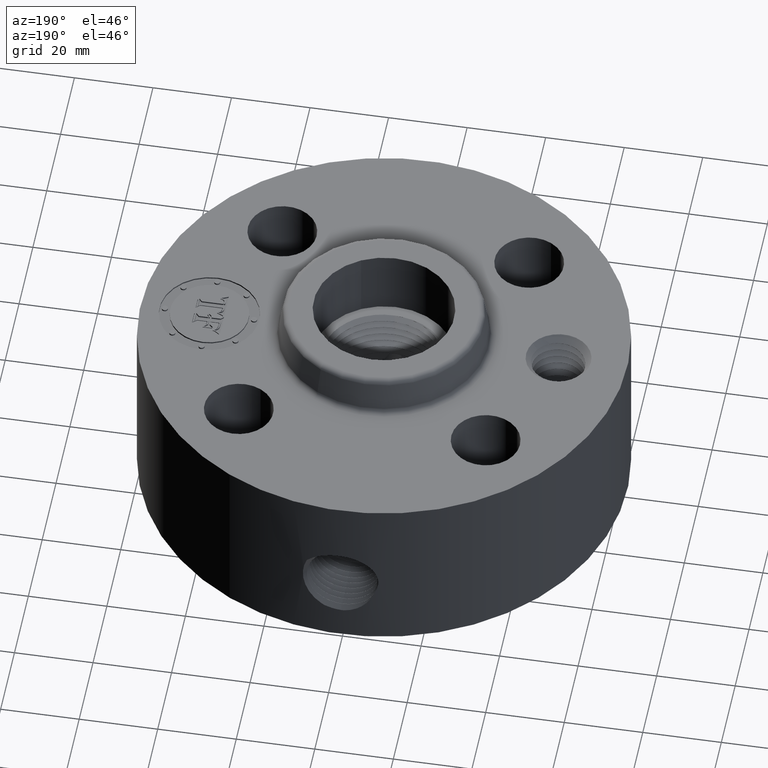
[diagram: clean part render]
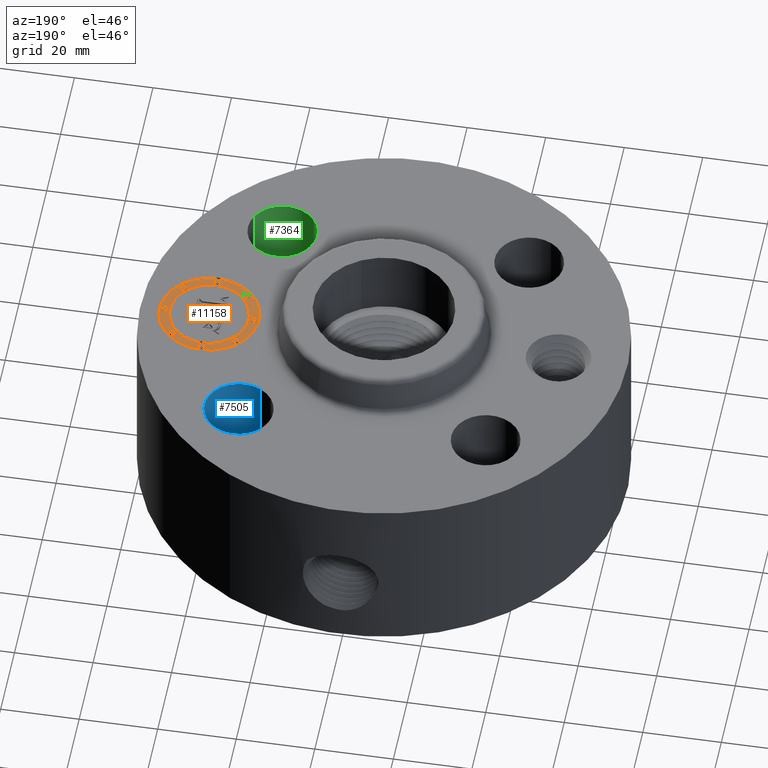
[diagram: same view with three faces highlighted in distinct colors, each labeled with its STEP entity id]
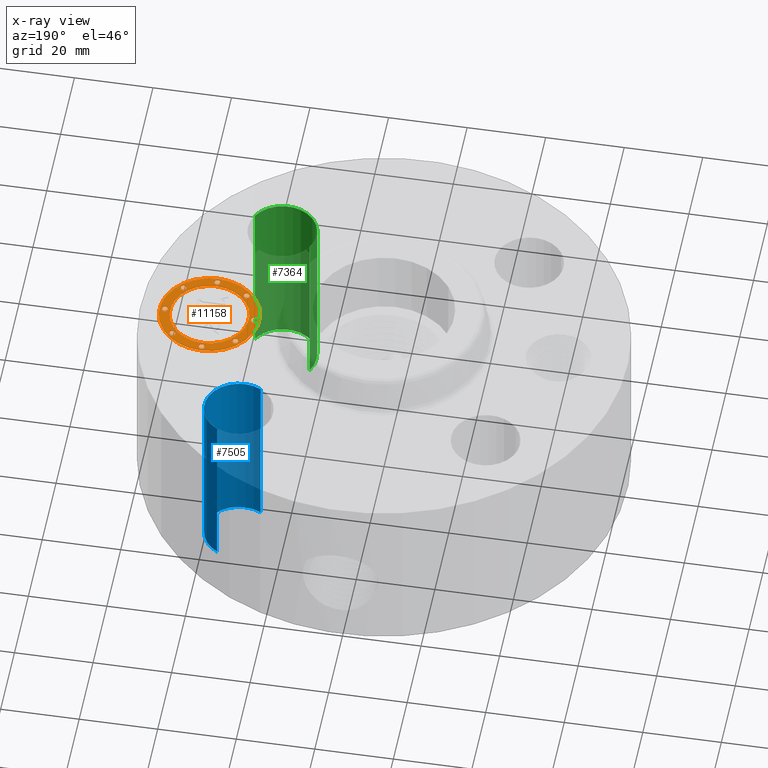
[diagram: x-ray of the same camera — body ghosted, the three highlighted faces saturated]
A machine part, auxiliary view with three faces highlighted in distinct colors.
The next image is the same camera in x-ray (body ghosted, the three faces saturated) — at least one of them is partly hidden behind the body in this view.
Their STEP definitions:

[orange] entity #11158 — the highlighted planar face has unit normal (0, 0, 1).
#9767=AXIS2_PLACEMENT_3D('Circle Axis2P3D',#9765,#9766,$) ;
#9794=AXIS2_PLACEMENT_3D('Circle Axis2P3D',#9792,#9793,$) ;
#10990=AXIS2_PLACEMENT_3D('Plane Axis2P3D',#10987,#10988,#10989) ;
#10998=AXIS2_PLACEMENT_3D('Circle Axis2P3D',#10996,#10997,$) ;
#11007=AXIS2_PLACEMENT_3D('Circle Axis2P3D',#11005,#11006,$) ;
#11016=AXIS2_PLACEMENT_3D('Circle Axis2P3D',#11014,#11015,$) ;
#11025=AXIS2_PLACEMENT_3D('Circle Axis2P3D',#11023,#11024,$) ;
#11034=AXIS2_PLACEMENT_3D('Circle Axis2P3D',#11032,#11033,$) ;
#11043=AXIS2_PLACEMENT_3D('Circle Axis2P3D',#11041,#11042,$) ;
#11052=AXIS2_PLACEMENT_3D('Circle Axis2P3D',#11050,#11051,$) ;
#11061=AXIS2_PLACEMENT_3D('Circle Axis2P3D',#11059,#11060,$) ;
#11070=AXIS2_PLACEMENT_3D('Circle Axis2P3D',#11068,#11069,$) ;
#11079=AXIS2_PLACEMENT_3D('Circle Axis2P3D',#11077,#11078,$) ;
#11088=AXIS2_PLACEMENT_3D('Circle Axis2P3D',#11086,#11087,$) ;
#11097=AXIS2_PLACEMENT_3D('Circle Axis2P3D',#11095,#11096,$) ;
#11106=AXIS2_PLACEMENT_3D('Circle Axis2P3D',#11104,#11105,$) ;
#11115=AXIS2_PLACEMENT_3D('Circle Axis2P3D',#11113,#11114,$) ;
#11124=AXIS2_PLACEMENT_3D('Circle Axis2P3D',#11122,#11123,$) ;
#11133=AXIS2_PLACEMENT_3D('Circle Axis2P3D',#11131,#11132,$) ;
#11142=AXIS2_PLACEMENT_3D('Circle Axis2P3D',#11140,#11141,$) ;
#11151=AXIS2_PLACEMENT_3D('Circle Axis2P3D',#11149,#11150,$) ;
#9762=CARTESIAN_POINT('Vertex',(1.75000000001,-0.499999995002,1.73500000001)) ;
#9765=CARTESIAN_POINT('Axis2P3D Location',(1.75000000001,-4.38103225949E-015,1.73500000001)) ;
#9769=CARTESIAN_POINT('Vertex',(1.75000000001,0.499999995002,1.73500000001)) ;
#9792=CARTESIAN_POINT('Axis2P3D Location',(1.75000000001,-4.38103225949E-015,1.73500000001)) ;
#10987=CARTESIAN_POINT('Axis2P3D Location',(0.,0.,1.73500000001)) ;
#10996=CARTESIAN_POINT('Axis2P3D Location',(1.75000000001,-4.38103225949E-015,1.73500000001)) ;
#11000=CARTESIAN_POINT('Vertex',(1.75000000001,-0.393939390002,1.73500000001)) ;
#11002=CARTESIAN_POINT('Vertex',(1.75000000001,0.393939390002,1.73500000001)) ;
#11005=CARTESIAN_POINT('Axis2P3D Location',(1.75000000001,-4.38103225949E-015,1.73500000001)) ;
#11014=CARTESIAN_POINT('Axis2P3D Location',(1.30303030751,-5.65258331292E-015,1.73500000001)) ;
#11018=CARTESIAN_POINT('Vertex',(1.30303030751,-0.0303030300001,1.73500000001)) ;
#11020=CARTESIAN_POINT('Vertex',(1.30303030751,0.0303030300001,1.73500000001)) ;
#11023=CARTESIAN_POINT('Axis2P3D Location',(1.30303030751,-5.65258331292E-015,1.73500000001)) ;
#11032=CARTESIAN_POINT('Axis2P3D Location',(1.75000000001,0.446969692502,1.73500000001)) ;
#11036=CARTESIAN_POINT('Vertex',(1.75000000001,0.416666662502,1.73500000001)) ;
#11038=CARTESIAN_POINT('Vertex',(1.75000000001,0.477272722502,1.73500000001)) ;
#11041=CARTESIAN_POINT('Axis2P3D Location',(1.75000000001,0.446969692502,1.73500000001)) ;
#11050=CARTESIAN_POINT('Axis2P3D Location',(1.43394469945,0.316055300553,1.73500000001)) ;
#11054=CARTESIAN_POINT('Vertex',(1.43394469945,0.285752270553,1.73500000001)) ;
#11056=CARTESIAN_POINT('Vertex',(1.43394469945,0.346358330553,1.73500000001)) ;
#11059=CARTESIAN_POINT('Axis2P3D Location',(1.43394469945,0.316055300553,1.73500000001)) ;
#11068=CARTESIAN_POINT('Axis2P3D Location',(2.19696969251,7.34549412211E-015,1.73500000001)) ;
#11072=CARTESIAN_POINT('Vertex',(2.19696969251,-0.0303030300001,1.73500000001)) ;
#11074=CARTESIAN_POINT('Vertex',(2.19696969251,0.0303030300001,1.73500000001)) ;
#11077=CARTESIAN_POINT('Axis2P3D Location',(2.19696969251,7.34549412211E-015,1.73500000001)) ;
#11086=CARTESIAN_POINT('Axis2P3D Location',(2.06605530056,0.316055300553,1.73500000001)) ;
#11090=CARTESIAN_POINT('Vertex',(2.06605530056,0.285752270553,1.73500000001)) ;
#11092=CARTESIAN_POINT('Vertex',(2.06605530056,0.346358330553,1.73500000001)) ;
#11095=CARTESIAN_POINT('Axis2P3D Location',(2.06605530056,0.316055300553,1.73500000001)) ;
#11104=CARTESIAN_POINT('Axis2P3D Location',(1.75000000001,-0.446969692502,1.73500000001)) ;
#11108=CARTESIAN_POINT('Vertex',(1.75000000001,-0.416666662502,1.73500000001)) ;
#11110=CARTESIAN_POINT('Vertex',(1.75000000001,-0.477272722502,1.73500000001)) ;
#11113=CARTESIAN_POINT('Axis2P3D Location',(1.75000000001,-0.446969692502,1.73500000001)) ;
#11122=CARTESIAN_POINT('Axis2P3D Location',(1.43394469945,-0.316055300553,1.73500000001)) ;
#11126=CARTESIAN_POINT('Vertex',(1.43394469945,-0.285752270553,1.73500000001)) ;
#11128=CARTESIAN_POINT('Vertex',(1.43394469945,-0.346358330553,1.73500000001)) ;
#11131=CARTESIAN_POINT('Axis2P3D Location',(1.43394469945,-0.316055300553,1.73500000001)) ;
#11140=CARTESIAN_POINT('Axis2P3D Location',(2.06605530056,-0.316055300553,1.73500000001)) ;
#11144=CARTESIAN_POINT('Vertex',(2.06605530056,-0.285752270553,1.73500000001)) ;
#11146=CARTESIAN_POINT('Vertex',(2.06605530056,-0.346358330553,1.73500000001)) ;
#11149=CARTESIAN_POINT('Axis2P3D Location',(2.06605530056,-0.316055300553,1.73500000001)) ;
#9766=DIRECTION('Axis2P3D Direction',(0.,0.,0.0393700787402)) ;
#9793=DIRECTION('Axis2P3D Direction',(0.,0.,0.0393700787402)) ;
#10988=DIRECTION('Axis2P3D Direction',(0.,0.,0.0393700787402)) ;
#10989=DIRECTION('Axis2P3D XDirection',(0.0393700787402,0.,0.)) ;
#10997=DIRECTION('Axis2P3D Direction',(0.,0.,0.0393700787402)) ;
#11006=DIRECTION('Axis2P3D Direction',(0.,0.,0.0393700787402)) ;
#11015=DIRECTION('Axis2P3D Direction',(0.,0.,0.0393700787402)) ;
#11024=DIRECTION('Axis2P3D Direction',(0.,0.,0.0393700787402)) ;
#11033=DIRECTION('Axis2P3D Direction',(0.,0.,0.0393700787402)) ;
#11042=DIRECTION('Axis2P3D Direction',(0.,0.,0.0393700787402)) ;
#11051=DIRECTION('Axis2P3D Direction',(0.,0.,0.0393700787402)) ;
#11060=DIRECTION('Axis2P3D Direction',(0.,0.,0.0393700787402)) ;
#11069=DIRECTION('Axis2P3D Direction',(0.,0.,0.0393700787402)) ;
#11078=DIRECTION('Axis2P3D Direction',(0.,0.,0.0393700787402)) ;
#11087=DIRECTION('Axis2P3D Direction',(0.,0.,0.0393700787402)) ;
#11096=DIRECTION('Axis2P3D Direction',(0.,0.,0.0393700787402)) ;
#11105=DIRECTION('Axis2P3D Direction',(0.,0.,0.0393700787402)) ;
#11114=DIRECTION('Axis2P3D Direction',(0.,0.,0.0393700787402)) ;
#11123=DIRECTION('Axis2P3D Direction',(0.,0.,0.0393700787402)) ;
#11132=DIRECTION('Axis2P3D Direction',(0.,0.,0.0393700787402)) ;
#11141=DIRECTION('Axis2P3D Direction',(0.,0.,0.0393700787402)) ;
#11150=DIRECTION('Axis2P3D Direction',(0.,0.,0.0393700787402)) ;
#10993=ORIENTED_EDGE('',*,*,#9771,.T.) ;
#10994=ORIENTED_EDGE('',*,*,#9796,.T.) ;
#11011=ORIENTED_EDGE('',*,*,#11004,.F.) ;
#11012=ORIENTED_EDGE('',*,*,#11009,.F.) ;
#11029=ORIENTED_EDGE('',*,*,#11022,.F.) ;
#11030=ORIENTED_EDGE('',*,*,#11027,.F.) ;
#11047=ORIENTED_EDGE('',*,*,#11040,.F.) ;
#11048=ORIENTED_EDGE('',*,*,#11045,.F.) ;
#11065=ORIENTED_EDGE('',*,*,#11058,.F.) ;
#11066=ORIENTED_EDGE('',*,*,#11063,.F.) ;
#11083=ORIENTED_EDGE('',*,*,#11076,.F.) ;
#11084=ORIENTED_EDGE('',*,*,#11081,.F.) ;
#11101=ORIENTED_EDGE('',*,*,#11094,.F.) ;
#11102=ORIENTED_EDGE('',*,*,#11099,.F.) ;
#11119=ORIENTED_EDGE('',*,*,#11112,.F.) ;
#11120=ORIENTED_EDGE('',*,*,#11117,.F.) ;
#11137=ORIENTED_EDGE('',*,*,#11130,.F.) ;
#11138=ORIENTED_EDGE('',*,*,#11135,.F.) ;
#11155=ORIENTED_EDGE('',*,*,#11148,.F.) ;
#11156=ORIENTED_EDGE('',*,*,#11153,.F.) ;
#11013=FACE_BOUND('',#11010,.T.) ;
#11031=FACE_BOUND('',#11028,.T.) ;
#11049=FACE_BOUND('',#11046,.T.) ;
#11067=FACE_BOUND('',#11064,.T.) ;
#11085=FACE_BOUND('',#11082,.T.) ;
#11103=FACE_BOUND('',#11100,.T.) ;
#11121=FACE_BOUND('',#11118,.T.) ;
#11139=FACE_BOUND('',#11136,.T.) ;
#11157=FACE_BOUND('',#11154,.T.) ;
#11158=ADVANCED_FACE('PartBody',(#10995,#11013,#11031,#11049,#11067,#11085,#11103,#11121,#11139,#11157),#10991,.T.) ;
#9768=CIRCLE('generated circle',#9767,0.499999995002) ;
#9795=CIRCLE('generated circle',#9794,0.499999995002) ;
#10999=CIRCLE('generated circle',#10998,0.393939390002) ;
#11008=CIRCLE('generated circle',#11007,0.393939390002) ;
#11017=CIRCLE('generated circle',#11016,0.0303030300001) ;
#11026=CIRCLE('generated circle',#11025,0.0303030300001) ;
#11035=CIRCLE('generated circle',#11034,0.0303030300001) ;
#11044=CIRCLE('generated circle',#11043,0.0303030300001) ;
#11053=CIRCLE('generated circle',#11052,0.0303030300001) ;
#11062=CIRCLE('generated circle',#11061,0.0303030300001) ;
#11071=CIRCLE('generated circle',#11070,0.0303030300001) ;
#11080=CIRCLE('generated circle',#11079,0.0303030300001) ;
#11089=CIRCLE('generated circle',#11088,0.0303030300001) ;
#11098=CIRCLE('generated circle',#11097,0.0303030300001) ;
#11107=CIRCLE('generated circle',#11106,0.0303030300001) ;
#11116=CIRCLE('generated circle',#11115,0.0303030300001) ;
#11125=CIRCLE('generated circle',#11124,0.0303030300001) ;
#11134=CIRCLE('generated circle',#11133,0.0303030300001) ;
#11143=CIRCLE('generated circle',#11142,0.0303030300001) ;
#11152=CIRCLE('generated circle',#11151,0.0303030300001) ;
#9771=EDGE_CURVE('',#9770,#9763,#9768,.T.) ;
#9796=EDGE_CURVE('',#9763,#9770,#9795,.T.) ;
#11004=EDGE_CURVE('',#11001,#11003,#10999,.T.) ;
#11009=EDGE_CURVE('',#11003,#11001,#11008,.T.) ;
#11022=EDGE_CURVE('',#11019,#11021,#11017,.T.) ;
#11027=EDGE_CURVE('',#11021,#11019,#11026,.T.) ;
#11040=EDGE_CURVE('',#11037,#11039,#11035,.T.) ;
#11045=EDGE_CURVE('',#11039,#11037,#11044,.T.) ;
#11058=EDGE_CURVE('',#11055,#11057,#11053,.T.) ;
#11063=EDGE_CURVE('',#11057,#11055,#11062,.T.) ;
#11076=EDGE_CURVE('',#11073,#11075,#11071,.T.) ;
#11081=EDGE_CURVE('',#11075,#11073,#11080,.T.) ;
#11094=EDGE_CURVE('',#11091,#11093,#11089,.T.) ;
#11099=EDGE_CURVE('',#11093,#11091,#11098,.T.) ;
#11112=EDGE_CURVE('',#11109,#11111,#11107,.T.) ;
#11117=EDGE_CURVE('',#11111,#11109,#11116,.T.) ;
#11130=EDGE_CURVE('',#11127,#11129,#11125,.T.) ;
#11135=EDGE_CURVE('',#11129,#11127,#11134,.T.) ;
#11148=EDGE_CURVE('',#11145,#11147,#11143,.T.) ;
#11153=EDGE_CURVE('',#11147,#11145,#11152,.T.) ;
#10992=EDGE_LOOP('',(#10993,#10994)) ;
#11010=EDGE_LOOP('',(#11011,#11012)) ;
#11028=EDGE_LOOP('',(#11029,#11030)) ;
#11046=EDGE_LOOP('',(#11047,#11048)) ;
#11064=EDGE_LOOP('',(#11065,#11066)) ;
#11082=EDGE_LOOP('',(#11083,#11084)) ;
#11100=EDGE_LOOP('',(#11101,#11102)) ;
#11118=EDGE_LOOP('',(#11119,#11120)) ;
#11136=EDGE_LOOP('',(#11137,#11138)) ;
#11154=EDGE_LOOP('',(#11155,#11156)) ;
#10995=FACE_OUTER_BOUND('',#10992,.T.) ;
#10991=PLANE('',#10990) ;
#9763=VERTEX_POINT('',#9762) ;
#9770=VERTEX_POINT('',#9769) ;
#11001=VERTEX_POINT('',#11000) ;
#11003=VERTEX_POINT('',#11002) ;
#11019=VERTEX_POINT('',#11018) ;
#11021=VERTEX_POINT('',#11020) ;
#11037=VERTEX_POINT('',#11036) ;
#11039=VERTEX_POINT('',#11038) ;
#11055=VERTEX_POINT('',#11054) ;
#11057=VERTEX_POINT('',#11056) ;
#11073=VERTEX_POINT('',#11072) ;
#11075=VERTEX_POINT('',#11074) ;
#11091=VERTEX_POINT('',#11090) ;
#11093=VERTEX_POINT('',#11092) ;
#11109=VERTEX_POINT('',#11108) ;
#11111=VERTEX_POINT('',#11110) ;
#11127=VERTEX_POINT('',#11126) ;
#11129=VERTEX_POINT('',#11128) ;
#11145=VERTEX_POINT('',#11144) ;
#11147=VERTEX_POINT('',#11146) ;

[blue] entity #7505 — the highlighted cylindrical surface (edge-blend (fillet) strip) has radius 8.763 mm, axis along (0, 0, -1).
#6217=AXIS2_PLACEMENT_3D('Circle Axis2P3D',#6215,#6216,$) ;
#7466=AXIS2_PLACEMENT_3D('Cylinder Axis2P3D',#7463,#7464,#7465) ;
#7496=AXIS2_PLACEMENT_3D('Circle Axis2P3D',#7494,#7495,$) ;
#6210=CARTESIAN_POINT('Vertex',(1.07203505626,0.934670883228,0.)) ;
#6212=CARTESIAN_POINT('Vertex',(1.4028386779,1.54020285093,0.)) ;
#6215=CARTESIAN_POINT('Axis2P3D Location',(1.23743686708,1.23743686708,0.)) ;
#7463=CARTESIAN_POINT('Axis2P3D Location',(1.23743686708,1.23743686708,1.74606299213)) ;
#7468=CARTESIAN_POINT('Line Origine',(1.07203505626,0.934670883228,0.875000000003)) ;
#7472=CARTESIAN_POINT('Vertex',(1.07203505626,0.934670883228,1.75000000001)) ;
#7475=CARTESIAN_POINT('Line Origine',(1.4028386779,1.54020285093,0.875000000003)) ;
#7479=CARTESIAN_POINT('Vertex',(1.4028386779,1.54020285093,1.75000000001)) ;
#7494=CARTESIAN_POINT('Axis2P3D Location',(1.23743686708,1.23743686708,1.75000000001)) ;
#6216=DIRECTION('Axis2P3D Direction',(0.,0.,-0.0393700787402)) ;
#7464=DIRECTION('Axis2P3D Direction',(0.,0.,-0.0393700787402)) ;
#7465=DIRECTION('Axis2P3D XDirection',(0.0188750212049,0.0345504945626,0.)) ;
#7469=DIRECTION('Vector Direction',(0.,0.,-0.0393700787402)) ;
#7476=DIRECTION('Vector Direction',(0.,0.,-0.0393700787402)) ;
#7495=DIRECTION('Axis2P3D Direction',(0.,0.,-0.0393700787402)) ;
#7470=VECTOR('Line Direction',#7469,0.0393700787402) ;
#7477=VECTOR('Line Direction',#7476,0.0393700787402) ;
#7500=ORIENTED_EDGE('',*,*,#7481,.F.) ;
#7501=ORIENTED_EDGE('',*,*,#6219,.T.) ;
#7502=ORIENTED_EDGE('',*,*,#7474,.T.) ;
#7503=ORIENTED_EDGE('',*,*,#7498,.F.) ;
#7505=ADVANCED_FACE('PartBody',(#7504),#7467,.F.) ;
#6218=CIRCLE('generated circle',#6217,0.345000000001) ;
#7497=CIRCLE('generated circle',#7496,0.345000000001) ;
#7467=CYLINDRICAL_SURFACE('generated cylinder',#7466,0.345000000001) ;
#6219=EDGE_CURVE('',#6213,#6211,#6218,.T.) ;
#7474=EDGE_CURVE('',#6211,#7473,#7471,.F.) ;
#7481=EDGE_CURVE('',#6213,#7480,#7478,.F.) ;
#7498=EDGE_CURVE('',#7480,#7473,#7497,.T.) ;
#7499=EDGE_LOOP('',(#7500,#7501,#7502,#7503)) ;
#7504=FACE_OUTER_BOUND('',#7499,.T.) ;
#7471=LINE('Line',#7468,#7470) ;
#7478=LINE('Line',#7475,#7477) ;
#6211=VERTEX_POINT('',#6210) ;
#6213=VERTEX_POINT('',#6212) ;
#7473=VERTEX_POINT('',#7472) ;
#7480=VERTEX_POINT('',#7479) ;

[green] entity #7364 — the highlighted cylindrical surface (edge-blend (fillet) strip) has radius 8.763 mm, axis along (0, -0, -1).
#6154=AXIS2_PLACEMENT_3D('Circle Axis2P3D',#6152,#6153,$) ;
#7337=AXIS2_PLACEMENT_3D('Cylinder Axis2P3D',#7334,#7335,#7336) ;
#7355=AXIS2_PLACEMENT_3D('Circle Axis2P3D',#7353,#7354,$) ;
#6152=CARTESIAN_POINT('Axis2P3D Location',(1.23743686708,-1.23743686708,0.)) ;
#6156=CARTESIAN_POINT('Vertex',(1.54020285093,-1.4028386779,0.)) ;
#6158=CARTESIAN_POINT('Vertex',(0.934670883228,-1.07203505626,0.)) ;
#7334=CARTESIAN_POINT('Axis2P3D Location',(1.23743686708,-1.23743686708,1.74606299213)) ;
#7339=CARTESIAN_POINT('Line Origine',(1.54020285093,-1.4028386779,0.875000000003)) ;
#7343=CARTESIAN_POINT('Vertex',(1.54020285093,-1.4028386779,1.75000000001)) ;
#7346=CARTESIAN_POINT('Line Origine',(0.934670883228,-1.07203505626,0.875000000003)) ;
#7350=CARTESIAN_POINT('Vertex',(0.934670883228,-1.07203505626,1.75000000001)) ;
#7353=CARTESIAN_POINT('Axis2P3D Location',(1.23743686708,-1.23743686708,1.75000000001)) ;
#6153=DIRECTION('Axis2P3D Direction',(0.,0.,-0.0393700787402)) ;
#7335=DIRECTION('Axis2P3D Direction',(0.,-0.,-0.0393700787402)) ;
#7336=DIRECTION('Axis2P3D XDirection',(-0.0345504945626,0.0188750212049,0.)) ;
#7340=DIRECTION('Vector Direction',(0.,0.,-0.0393700787402)) ;
#7347=DIRECTION('Vector Direction',(0.,0.,-0.0393700787402)) ;
#7354=DIRECTION('Axis2P3D Direction',(0.,-0.,-0.0393700787402)) ;
#7341=VECTOR('Line Direction',#7340,0.0393700787402) ;
#7348=VECTOR('Line Direction',#7347,0.0393700787402) ;
#7359=ORIENTED_EDGE('',*,*,#7345,.F.) ;
#7360=ORIENTED_EDGE('',*,*,#6160,.T.) ;
#7361=ORIENTED_EDGE('',*,*,#7352,.T.) ;
#7362=ORIENTED_EDGE('',*,*,#7357,.F.) ;
#7364=ADVANCED_FACE('PartBody',(#7363),#7338,.F.) ;
#6155=CIRCLE('generated circle',#6154,0.345000000001) ;
#7356=CIRCLE('generated circle',#7355,0.345000000001) ;
#7338=CYLINDRICAL_SURFACE('generated cylinder',#7337,0.345000000001) ;
#6160=EDGE_CURVE('',#6157,#6159,#6155,.T.) ;
#7345=EDGE_CURVE('',#6157,#7344,#7342,.F.) ;
#7352=EDGE_CURVE('',#6159,#7351,#7349,.F.) ;
#7357=EDGE_CURVE('',#7344,#7351,#7356,.T.) ;
#7358=EDGE_LOOP('',(#7359,#7360,#7361,#7362)) ;
#7363=FACE_OUTER_BOUND('',#7358,.T.) ;
#7342=LINE('Line',#7339,#7341) ;
#7349=LINE('Line',#7346,#7348) ;
#6157=VERTEX_POINT('',#6156) ;
#6159=VERTEX_POINT('',#6158) ;
#7344=VERTEX_POINT('',#7343) ;
#7351=VERTEX_POINT('',#7350) ;